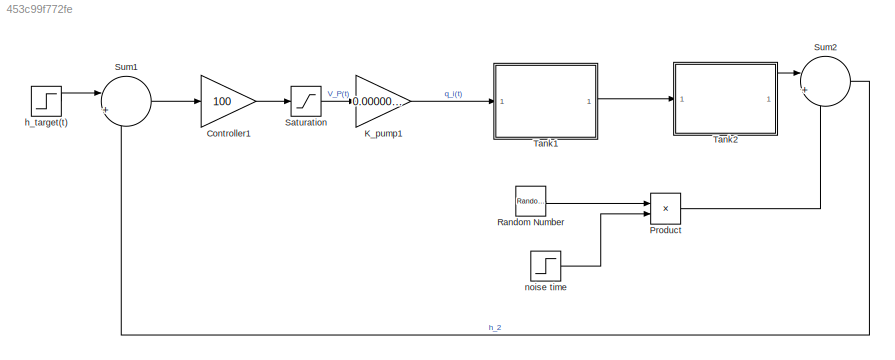
MODEL slx_453c99f772fe
KIND model
CONFIG AbsTol = auto
CONFIG EnableMultiTasking = off
CONFIG FixedStep = auto
CONFIG MaxStep = auto
CONFIG MinStep = auto
CONFIG RelTol = 1e-12
CONFIG SampleTimeConstraint = Unconstrained
CONFIG SolverName = VariableStepAuto
CONFIG StartTime = 0.0
CONFIG StopTime = 100
BLOCK [Gain] Controller1
  Gain = 100
BLOCK [Gain] K_pump1
  Gain = 0.0000035
BLOCK [Product] Product
BLOCK [RandomNumber] Random Number
  SampleTime = 0.1
  Variance = 1e-6
BLOCK [Saturate] Saturation
  LowerLimit = 0
  UpperLimit = 12
BLOCK [Sum] Sum1
  Inputs = |+-
BLOCK [Sum] Sum2
  Inputs = |++
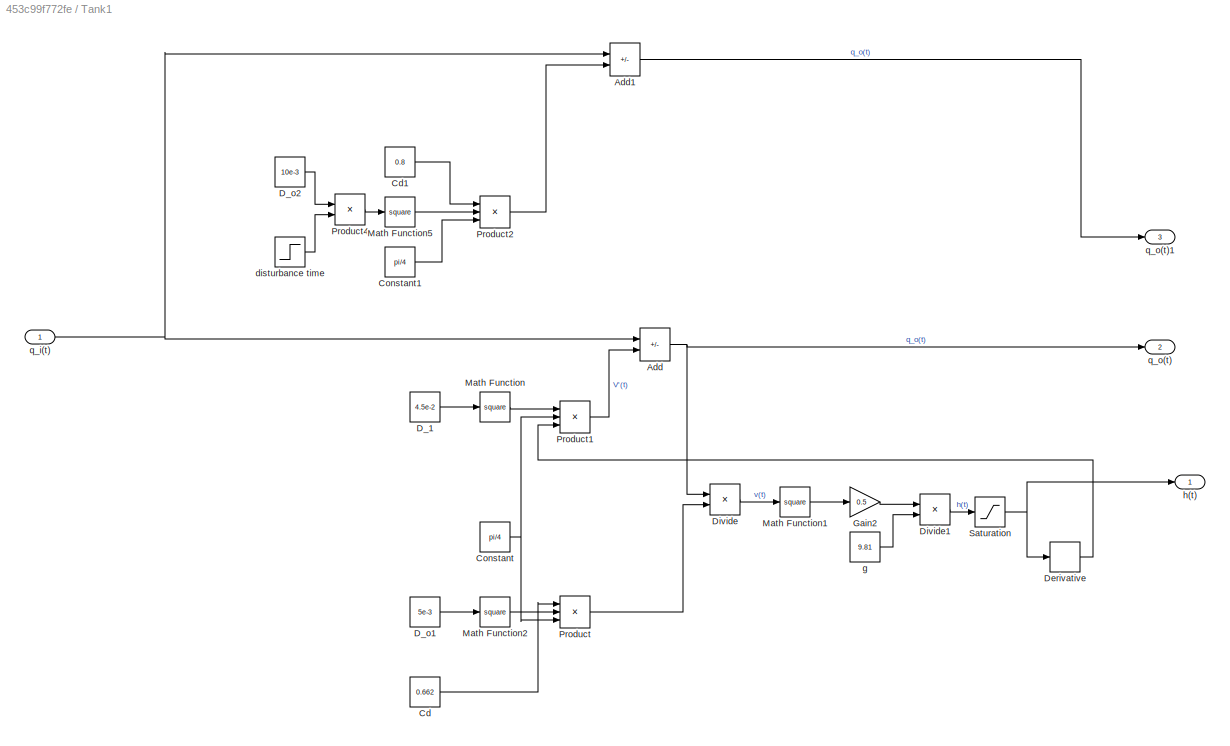
BLOCK [SubSystem] Tank1
BLOCK [Sum] Tank1/Add
  IconShape = rectangular
  Inputs = +-
BLOCK [Sum] Tank1/Add1
  IconShape = rectangular
  Inputs = +-
BLOCK [Constant] Tank1/Cd
  Value = 0.662
BLOCK [Constant] Tank1/Cd1
  Value = 0.8
BLOCK [Constant] Tank1/Constant
  Value = pi/4
BLOCK [Constant] Tank1/Constant1
  Value = pi/4
BLOCK [Constant] Tank1/D_1
  Value = 4.5e-2
BLOCK [Constant] Tank1/D_o1
  Value = 5e-3
BLOCK [Constant] Tank1/D_o2
  Value = 10e-3
BLOCK [Derivative] Tank1/Derivative
BLOCK [Product] Tank1/Divide
  Inputs = */
BLOCK [Product] Tank1/Divide1
  Inputs = */
BLOCK [Gain] Tank1/Gain2
  Gain = 0.5
BLOCK [Math] Tank1/Math Function
  Operator = square
BLOCK [Math] Tank1/Math Function1
  Operator = square
BLOCK [Math] Tank1/Math Function2
  Operator = square
BLOCK [Math] Tank1/Math Function5
  Operator = square
BLOCK [Product] Tank1/Product
  Inputs = 3
BLOCK [Product] Tank1/Product1
  Inputs = 3
BLOCK [Product] Tank1/Product2
  Inputs = 3
BLOCK [Product] Tank1/Product4
BLOCK [Saturate] Tank1/Saturation
  LowerLimit = 0
  UpperLimit = 25e-3
BLOCK [Step] Tank1/disturbance time
  SampleTime = 0
  Time = 5
BLOCK [Constant] Tank1/g
  Value = 9.81
BLOCK [Outport] Tank1/h(t)
BLOCK [Inport] Tank1/q_i(t)
BLOCK [Outport] Tank1/q_o(t)
  Port = 2
BLOCK [Outport] Tank1/q_o(t)1
  Port = 3
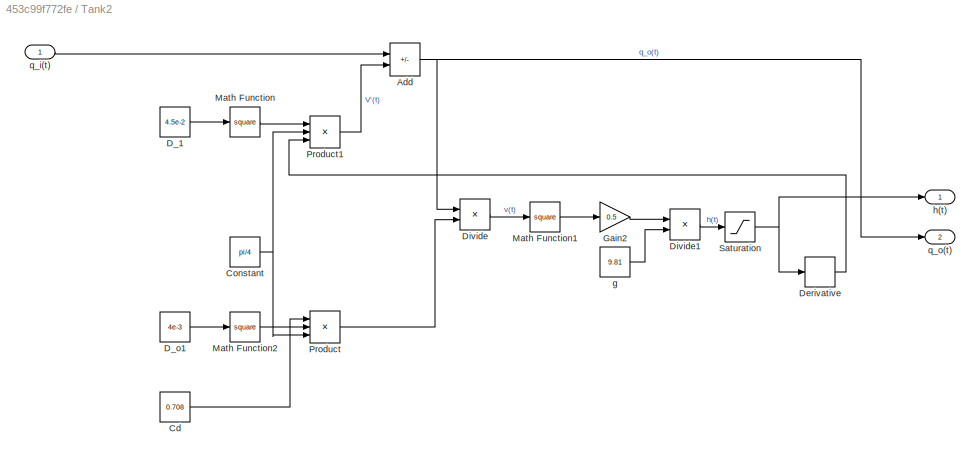
BLOCK [SubSystem] Tank2
BLOCK [Sum] Tank2/Add
  IconShape = rectangular
  Inputs = +-
BLOCK [Constant] Tank2/Cd
  Value = 0.708
BLOCK [Constant] Tank2/Constant
  Value = pi/4
BLOCK [Constant] Tank2/D_1
  Value = 4.5e-2
BLOCK [Constant] Tank2/D_o1
  Value = 4e-3
BLOCK [Derivative] Tank2/Derivative
BLOCK [Product] Tank2/Divide
  Inputs = */
BLOCK [Product] Tank2/Divide1
  Inputs = */
BLOCK [Gain] Tank2/Gain2
  Gain = 0.5
BLOCK [Math] Tank2/Math Function
  Operator = square
BLOCK [Math] Tank2/Math Function1
  Operator = square
BLOCK [Math] Tank2/Math Function2
  Operator = square
BLOCK [Product] Tank2/Product
  Inputs = 3
BLOCK [Product] Tank2/Product1
  Inputs = 3
BLOCK [Saturate] Tank2/Saturation
  LowerLimit = 0
  UpperLimit = 25e-3
BLOCK [Constant] Tank2/g
  Value = 9.81
BLOCK [Outport] Tank2/h(t)
BLOCK [Inport] Tank2/q_i(t)
BLOCK [Outport] Tank2/q_o(t)
  Port = 2
BLOCK [Step] h_target(t)
  After = 20e-3
  Before = 10e-3
  SampleTime = 0
BLOCK [Step] noise time
  SampleTime = 0
  Time = 50
LINE Controller1:1 -> Saturation:1
LINE K_pump1:1 -> Tank1:1
LINE Product:1 -> Sum2:2
LINE Random Number:1 -> Product:1
LINE Saturation:1 -> K_pump1:1
LINE Sum1:1 -> Controller1:1
LINE Sum2:1 -> Sum1:2
LINE Tank1/Add1:1 -> Tank1/q_o(t)1:1
NET Tank1/Add:1 -> Tank1/Divide:1, Tank1/q_o(t):1
LINE Tank1/Cd1:1 -> Tank1/Product2:1
LINE Tank1/Cd:1 -> Tank1/Product:1
LINE Tank1/Constant1:1 -> Tank1/Product2:3
NET Tank1/Constant:1 -> Tank1/Product1:2, Tank1/Product:3
LINE Tank1/D_1:1 -> Tank1/Math Function:1
LINE Tank1/D_o1:1 -> Tank1/Math Function2:1
LINE Tank1/D_o2:1 -> Tank1/Product4:1
LINE Tank1/Derivative:1 -> Tank1/Product1:3
LINE Tank1/Divide1:1 -> Tank1/Saturation:1
LINE Tank1/Divide:1 -> Tank1/Math Function1:1
LINE Tank1/Gain2:1 -> Tank1/Divide1:1
LINE Tank1/Math Function1:1 -> Tank1/Gain2:1
LINE Tank1/Math Function2:1 -> Tank1/Product:2
LINE Tank1/Math Function5:1 -> Tank1/Product2:2
LINE Tank1/Math Function:1 -> Tank1/Product1:1
LINE Tank1/Product1:1 -> Tank1/Add:2
LINE Tank1/Product2:1 -> Tank1/Add1:2
LINE Tank1/Product4:1 -> Tank1/Math Function5:1
LINE Tank1/Product:1 -> Tank1/Divide:2
NET Tank1/Saturation:1 -> Tank1/Derivative:1, Tank1/h(t):1
LINE Tank1/disturbance time:1 -> Tank1/Product4:2
LINE Tank1/g:1 -> Tank1/Divide1:2
NET Tank1/q_i(t):1 -> Tank1/Add1:1, Tank1/Add:1
LINE Tank1:2 -> Tank2:1
NET Tank2/Add:1 -> Tank2/Divide:1, Tank2/q_o(t):1
LINE Tank2/Cd:1 -> Tank2/Product:1
NET Tank2/Constant:1 -> Tank2/Product1:2, Tank2/Product:3
LINE Tank2/D_1:1 -> Tank2/Math Function:1
LINE Tank2/D_o1:1 -> Tank2/Math Function2:1
LINE Tank2/Derivative:1 -> Tank2/Product1:3
LINE Tank2/Divide1:1 -> Tank2/Saturation:1
LINE Tank2/Divide:1 -> Tank2/Math Function1:1
LINE Tank2/Gain2:1 -> Tank2/Divide1:1
LINE Tank2/Math Function1:1 -> Tank2/Gain2:1
LINE Tank2/Math Function2:1 -> Tank2/Product:2
LINE Tank2/Math Function:1 -> Tank2/Product1:1
LINE Tank2/Product1:1 -> Tank2/Add:2
LINE Tank2/Product:1 -> Tank2/Divide:2
NET Tank2/Saturation:1 -> Tank2/Derivative:1, Tank2/h(t):1
LINE Tank2/g:1 -> Tank2/Divide1:2
LINE Tank2/q_i(t):1 -> Tank2/Add:1
LINE Tank2:1 -> Sum2:1
LINE h_target(t):1 -> Sum1:1
LINE noise time:1 -> Product:2
note: NET lines group one-source signal fan-out (src -> all destinations, sorted); 1:1 wires keep LINE
